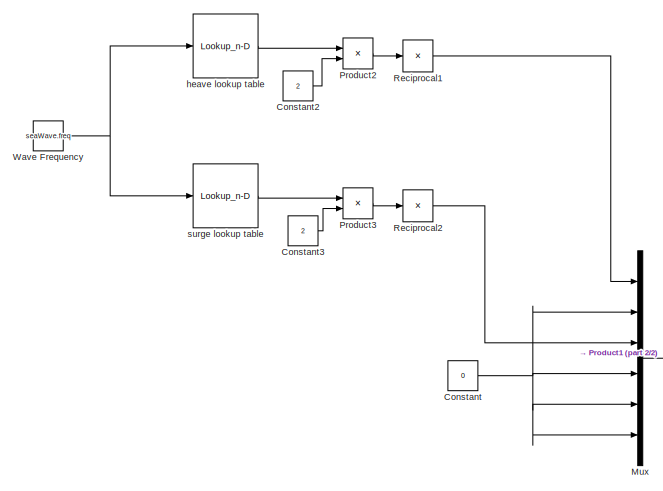
[diagram: root canvas - part 1/2, middle left region]
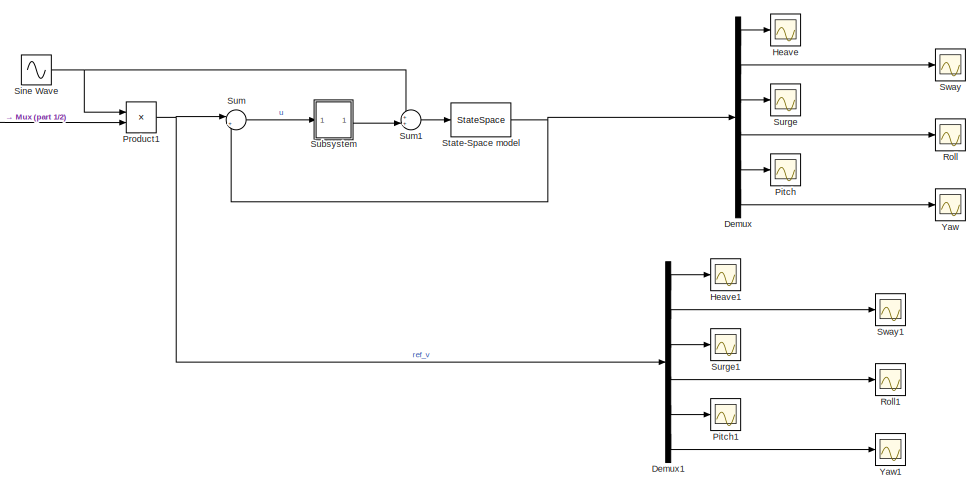
[diagram: root canvas - part 2/2, middle right region]
MODEL slx_bad853452c1d
KIND model
CONFIG AbsTol = auto
CONFIG EnableMultiTasking = off
CONFIG FixedStep = auto
CONFIG MaxStep = auto
CONFIG MinStep = auto
CONFIG RelTol = 1e-3
CONFIG SampleTimeConstraint = Unconstrained
CONFIG Solver = VariableStepAuto
CONFIG SolverName = VariableStepAuto
CONFIG StartTime = 0.0
CONFIG StopTime = 300
BLOCK [Constant] Constant
  Value = 0
BLOCK [Constant] Constant2
  Value = 2
BLOCK [Constant] Constant3
  Value = 2
BLOCK [Demux] Demux
  DisplayOption = bar
  Outputs = 6
  Ports = [1, 6]
BLOCK [Demux] Demux1
  DisplayOption = bar
  Outputs = 6
  Ports = [1, 6]
BLOCK [Scope] Heave
  Floating = off
  NumInputPorts = 1
  Ports = [1]
  ScopeSpecificationString = Simulink.scopes.TimeScopeBlockCfg('CurrentConfiguration', extmgr.ConfigurationSet(extmgr.Configuration('Core','General UI',true),extmgr.Configuration('Core','Source UI',true),extmgr.Configuration('Sources','WiredSimulink',true),extmgr.Configuration('Visuals','Time Domain',true,'SerializedDisplays',{struct('MinYLimReal','-3.65511','MaxYLimReal','3.70459','YLabelReal','','MinYLimMag','0.00000','MaxY...<+1375ch>
BLOCK [Scope] Heave1
  Floating = off
  NumInputPorts = 1
  Ports = [1]
  ScopeSpecificationString = Simulink.scopes.TimeScopeBlockCfg('CurrentConfiguration', extmgr.ConfigurationSet(extmgr.Configuration('Core','General UI',true),extmgr.Configuration('Core','Source UI',true),extmgr.Configuration('Sources','WiredSimulink',true,'DataLoggingVariableName','ScopeData2'),extmgr.Configuration('Visuals','Time Domain',true,'SerializedDisplays',{struct('MinYLimReal','-0.04461','MaxYLimReal','0.04462','YLab...<+1419ch>
BLOCK [Mux] Mux
  DisplayOption = bar
  Inputs = 6
  Ports = [6, 1]
BLOCK [Scope] Pitch
  Floating = off
  NumInputPorts = 1
  Ports = [1]
  ScopeSpecificationString = Simulink.scopes.TimeScopeBlockCfg('CurrentConfiguration', extmgr.ConfigurationSet(extmgr.Configuration('Core','General UI',true),extmgr.Configuration('Core','Source UI',true),extmgr.Configuration('Sources','WiredSimulink',true,'DataLoggingVariableName','ScopeData2'),extmgr.Configuration('Visuals','Time Domain',true,'SerializedDisplays',{struct('MinYLimReal','-0.32331','MaxYLimReal','0.31597','YLab...<+1385ch>
BLOCK [Scope] Pitch1
  Floating = off
  NumInputPorts = 1
  Ports = [1]
  ScopeSpecificationString = Simulink.scopes.TimeScopeBlockCfg('CurrentConfiguration', extmgr.ConfigurationSet(extmgr.Configuration('Core','General UI',true),extmgr.Configuration('Core','Source UI',true),extmgr.Configuration('Sources','WiredSimulink',true,'DataLoggingVariableName','ScopeData3'),extmgr.Configuration('Visuals','Time Domain',true,'SerializedDisplays',{struct('MinYLimReal','-0.32331','MaxYLimReal','0.31597','YLab...<+1385ch>
BLOCK [Product] Product1
  InputSameDT = off
  OutDataTypeStr = Inherit: Inherit via internal rule
  Ports = [2, 1]
  RndMeth = Floor
  SaturateOnIntegerOverflow = off
BLOCK [Product] Product2
  InputSameDT = off
  OutDataTypeStr = Inherit: Inherit via internal rule
  Ports = [2, 1]
  RndMeth = Floor
  SaturateOnIntegerOverflow = off
BLOCK [Product] Product3
  InputSameDT = off
  OutDataTypeStr = Inherit: Inherit via internal rule
  Ports = [2, 1]
  RndMeth = Floor
  SaturateOnIntegerOverflow = off
BLOCK [Product] Reciprocal1
  InputSameDT = off
  Inputs = /
  OutDataTypeStr = Inherit: Inherit via internal rule
  Ports = [1, 1]
  RndMeth = Floor
  SaturateOnIntegerOverflow = off
BLOCK [Product] Reciprocal2
  InputSameDT = off
  Inputs = /
  OutDataTypeStr = Inherit: Inherit via internal rule
  Ports = [1, 1]
  RndMeth = Floor
  SaturateOnIntegerOverflow = off
BLOCK [Scope] Roll
  Floating = off
  NumInputPorts = 1
  Ports = [1]
  ScopeSpecificationString = Simulink.scopes.TimeScopeBlockCfg('CurrentConfiguration', extmgr.ConfigurationSet(extmgr.Configuration('Core','General UI',true),extmgr.Configuration('Core','Source UI',true),extmgr.Configuration('Sources','WiredSimulink',true,'DataLoggingVariableName','ScopeData2'),extmgr.Configuration('Visuals','Time Domain',true,'SerializedDisplays',{struct('MinYLimReal','-0.01689','MaxYLimReal','0.01142','YLab...<+1385ch>
BLOCK [Scope] Roll1
  Floating = off
  NumInputPorts = 1
  Ports = [1]
  ScopeSpecificationString = Simulink.scopes.TimeScopeBlockCfg('CurrentConfiguration', extmgr.ConfigurationSet(extmgr.Configuration('Core','General UI',true),extmgr.Configuration('Core','Source UI',true),extmgr.Configuration('Sources','WiredSimulink',true,'DataLoggingVariableName','ScopeData4'),extmgr.Configuration('Visuals','Time Domain',true,'SerializedDisplays',{struct('MinYLimReal','-0.01689','MaxYLimReal','0.01142','YLab...<+1385ch>
BLOCK [Sin] Sine Wave
  Amplitude = seaWave.amp
  Frequency = seaWave.freq
  Ports = [0, 1]
  SampleTime = 0
BLOCK [StateSpace] State-Space model
  A = SS_full.A
  B = SS_full.B
  C = SS_full.C
  D = SS_full.D
  InitialCondition = 0
  Ports = [1, 1]
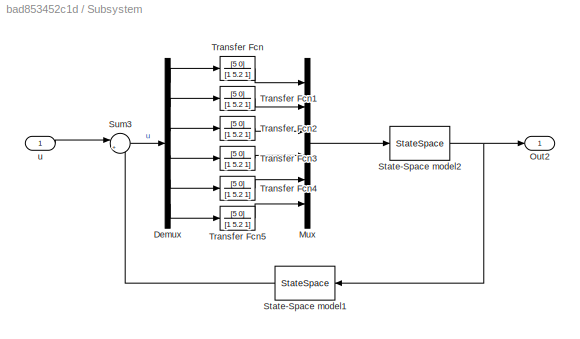
BLOCK [SubSystem] Subsystem
  Ports = [1, 1]
  RequestExecContextInheritance = off
BLOCK [Demux] Subsystem/Demux
  DisplayOption = bar
  Outputs = 6
  Ports = [1, 6]
BLOCK [Mux] Subsystem/Mux
  DisplayOption = bar
  Inputs = 6
  Ports = [6, 1]
BLOCK [Outport] Subsystem/Out2
  IconDisplay = Port number
BLOCK [StateSpace] Subsystem/State-Space model1
  A = SS_full.A
  B = SS_full.B
  C = SS_full.C
  D = SS_full.D
  InitialCondition = 0
  Ports = [1, 1]
BLOCK [StateSpace] Subsystem/State-Space model2
  A = pseudoSS.A
  B = pseudoSS.B
  C = pseudoSS.C
  D = pseudoSS.D
  InitialCondition = 0
  Ports = [1, 1]
BLOCK [Sum] Subsystem/Sum3
  IconShape = round
  InputSameDT = off
  Inputs = |++
  OutDataTypeStr = Inherit: Inherit via internal rule
  Ports = [2, 1]
  SaturateOnIntegerOverflow = off
BLOCK [TransferFcn] Subsystem/Transfer Fcn
  Denominator = [1 5.2 1]
  Numerator = [5 0]
BLOCK [TransferFcn] Subsystem/Transfer Fcn1
  Denominator = [1 5.2 1]
  Numerator = [5 0]
BLOCK [TransferFcn] Subsystem/Transfer Fcn2
  Denominator = [1 5.2 1]
  Numerator = [5 0]
BLOCK [TransferFcn] Subsystem/Transfer Fcn3
  Denominator = [1 5.2 1]
  Numerator = [5 0]
BLOCK [TransferFcn] Subsystem/Transfer Fcn4
  Denominator = [1 5.2 1]
  Numerator = [5 0]
BLOCK [TransferFcn] Subsystem/Transfer Fcn5
  Denominator = [1 5.2 1]
  Numerator = [5 0]
BLOCK [Inport] Subsystem/u
  IconDisplay = Port number
BLOCK [Sum] Sum
  IconShape = round
  InputSameDT = off
  Inputs = |+-
  OutDataTypeStr = Inherit: Inherit via internal rule
  Ports = [2, 1]
  SaturateOnIntegerOverflow = off
BLOCK [Sum] Sum1
  IconShape = round
  InputSameDT = off
  Inputs = ++|
  OutDataTypeStr = Inherit: Inherit via internal rule
  Ports = [2, 1]
  SaturateOnIntegerOverflow = off
BLOCK [Scope] Surge
  Floating = off
  NumInputPorts = 1
  Ports = [1]
  ScopeSpecificationString = Simulink.scopes.TimeScopeBlockCfg('CurrentConfiguration', extmgr.ConfigurationSet(extmgr.Configuration('Core','General UI',true),extmgr.Configuration('Core','Source UI',true),extmgr.Configuration('Sources','WiredSimulink',true,'DataLoggingVariableName','ScopeData1'),extmgr.Configuration('Visuals','Time Domain',true,'SerializedDisplays',{struct('MinYLimReal','-5.54032','MaxYLimReal','5.49552','YLab...<+1385ch>
BLOCK [Scope] Surge1
  Floating = off
  NumInputPorts = 1
  Ports = [1]
  ScopeSpecificationString = Simulink.scopes.TimeScopeBlockCfg('CurrentConfiguration', extmgr.ConfigurationSet(extmgr.Configuration('Core','General UI',true),extmgr.Configuration('Core','Source UI',true),extmgr.Configuration('Sources','WiredSimulink',true,'DataLoggingVariableName','ScopeData5'),extmgr.Configuration('Visuals','Time Domain',true,'SerializedDisplays',{struct('MinYLimReal','-5.54032','MaxYLimReal','5.49552','YLab...<+1385ch>
BLOCK [Scope] Sway
  Floating = off
  NumInputPorts = 1
  Ports = [1]
  ScopeSpecificationString = Simulink.scopes.TimeScopeBlockCfg('CurrentConfiguration', extmgr.ConfigurationSet(extmgr.Configuration('Core','General UI',true),extmgr.Configuration('Core','Source UI',true),extmgr.Configuration('Sources','WiredSimulink',true,'DataLoggingVariableName','ScopeData1'),extmgr.Configuration('Visuals','Time Domain',true,'SerializedDisplays',{struct('MinYLimReal','-0.44361','MaxYLimReal','0.59812','YLab...<+1385ch>
BLOCK [Scope] Sway1
  Floating = off
  NumInputPorts = 1
  Ports = [1]
  ScopeSpecificationString = Simulink.scopes.TimeScopeBlockCfg('CurrentConfiguration', extmgr.ConfigurationSet(extmgr.Configuration('Core','General UI',true),extmgr.Configuration('Core','Source UI',true),extmgr.Configuration('Sources','WiredSimulink',true,'DataLoggingVariableName','ScopeData6'),extmgr.Configuration('Visuals','Time Domain',true,'SerializedDisplays',{struct('MinYLimReal','-0.44361','MaxYLimReal','0.59812','YLab...<+1385ch>
BLOCK [Constant] Wave Frequency
  Value = seaWave.freq
BLOCK [Scope] Yaw
  Floating = off
  NumInputPorts = 1
  Ports = [1]
  ScopeSpecificationString = Simulink.scopes.TimeScopeBlockCfg('CurrentConfiguration', extmgr.ConfigurationSet(extmgr.Configuration('Core','General UI',true),extmgr.Configuration('Core','Source UI',true),extmgr.Configuration('Sources','WiredSimulink',true,'DataLoggingVariableName','ScopeData3'),extmgr.Configuration('Visuals','Time Domain',true,'SerializedDisplays',{struct('MinYLimReal','-0.01023','MaxYLimReal','0.01454','YLab...<+1385ch>
BLOCK [Scope] Yaw1
  Floating = off
  NumInputPorts = 1
  Ports = [1]
  ScopeSpecificationString = Simulink.scopes.TimeScopeBlockCfg('CurrentConfiguration', extmgr.ConfigurationSet(extmgr.Configuration('Core','General UI',true),extmgr.Configuration('Core','Source UI',true),extmgr.Configuration('Sources','WiredSimulink',true,'DataLoggingVariableName','ScopeData7'),extmgr.Configuration('Visuals','Time Domain',true,'SerializedDisplays',{struct('MinYLimReal','-0.01023','MaxYLimReal','0.01454','YLab...<+1385ch>
BLOCK [Lookup_n-D] heave lookup table
  BreakpointsForDimension1 = heave_data.freq
  InternalRulePriority = Speed
  NumberOfTableDimensions = 1
  Ports = [1, 1]
  RndMeth = Simplest
  Table = heave_data.amplitudes
BLOCK [Lookup_n-D] surge lookup table
  BreakpointsForDimension1 = surge_data.freq
  InternalRulePriority = Speed
  NumberOfTableDimensions = 1
  Ports = [1, 1]
  RndMeth = Simplest
  Table = surge_data.amplitudes
LINE Constant2:1 -> Product2:2
LINE Constant3:1 -> Product3:2
NET Constant:1 -> Mux:2, Mux:4, Mux:5, Mux:6
LINE Demux1:1 -> Heave1:1
LINE Demux1:2 -> Sway1:1
LINE Demux1:3 -> Surge1:1
LINE Demux1:4 -> Roll1:1
LINE Demux1:5 -> Pitch1:1
LINE Demux1:6 -> Yaw1:1
LINE Demux:1 -> Heave:1
LINE Demux:2 -> Sway:1
LINE Demux:3 -> Surge:1
LINE Demux:4 -> Roll:1
LINE Demux:5 -> Pitch:1
LINE Demux:6 -> Yaw:1
LINE Mux:1 -> Product1:2
NET Product1:1 -> Demux1:1, Sum:1
LINE Product2:1 -> Reciprocal1:1
LINE Product3:1 -> Reciprocal2:1
LINE Reciprocal1:1 -> Mux:1
LINE Reciprocal2:1 -> Mux:3
NET Sine Wave:1 -> Product1:1, Sum1:1
NET State-Space model:1 -> Demux:1, Sum:2
LINE Subsystem/Demux:1 -> Subsystem/Transfer Fcn:1
LINE Subsystem/Demux:2 -> Subsystem/Transfer Fcn1:1
LINE Subsystem/Demux:3 -> Subsystem/Transfer Fcn2:1
LINE Subsystem/Demux:4 -> Subsystem/Transfer Fcn3:1
LINE Subsystem/Demux:5 -> Subsystem/Transfer Fcn4:1
LINE Subsystem/Demux:6 -> Subsystem/Transfer Fcn5:1
LINE Subsystem/Mux:1 -> Subsystem/State-Space model2:1
LINE Subsystem/State-Space model1:1 -> Subsystem/Sum3:2
NET Subsystem/State-Space model2:1 -> Subsystem/Out2:1, Subsystem/State-Space model1:1
LINE Subsystem/Sum3:1 -> Subsystem/Demux:1
LINE Subsystem/Transfer Fcn1:1 -> Subsystem/Mux:2
LINE Subsystem/Transfer Fcn2:1 -> Subsystem/Mux:3
LINE Subsystem/Transfer Fcn3:1 -> Subsystem/Mux:4
LINE Subsystem/Transfer Fcn4:1 -> Subsystem/Mux:5
LINE Subsystem/Transfer Fcn5:1 -> Subsystem/Mux:6
LINE Subsystem/Transfer Fcn:1 -> Subsystem/Mux:1
LINE Subsystem/u:1 -> Subsystem/Sum3:1
LINE Subsystem:1 -> Sum1:2
LINE Sum1:1 -> State-Space model:1
LINE Sum:1 -> Subsystem:1
NET Wave Frequency:1 -> heave lookup table:1, surge lookup table:1
LINE heave lookup table:1 -> Product2:1
LINE surge lookup table:1 -> Product3:1
note: NET lines group one-source signal fan-out (src -> all destinations, sorted); 1:1 wires keep LINE
